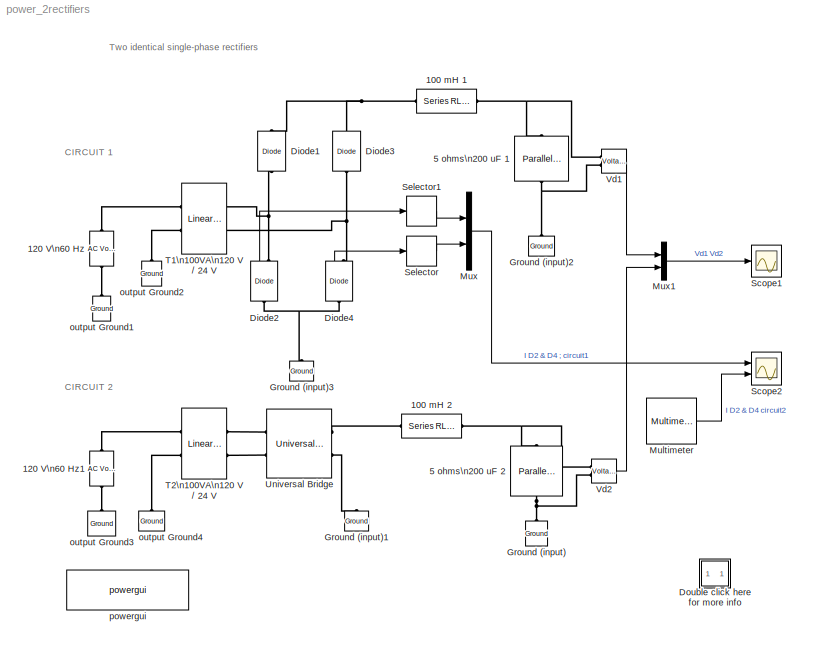
MODEL power_2rectifiers
KIND model
BLOCK [Reference] 100 mH 1  REF=powerlib/Elements/Series RLC Branch
  AttributesFormatString = \\n
  Capacitance = inf
  Inductance = 100e-03
  LConnTagsString = __new0
  LeftPortType = p1
  Measurements = None
  PhysicalDomain = powersysdomain
  Ports = [0, 0, 0, 0, 0, 1, 1]
  RConnTagsString = __new0
  Resistance = 0
  RightPortType = p1
  SourceBlock = powerlib/Elements/Series RLC Branch
  SourceType = Series RLC Branch
  SubClassName = unknown
BLOCK [Reference] 100 mH 2  REF=powerlib/Elements/Series RLC Branch
  AttributesFormatString = \\n
  Capacitance = inf
  Inductance = 100e-03
  LConnTagsString = __new0
  LeftPortType = p1
  Measurements = None
  PhysicalDomain = powersysdomain
  Ports = [0, 0, 0, 0, 0, 1, 1]
  RConnTagsString = __new0
  Resistance = 0
  RightPortType = p1
  SourceBlock = powerlib/Elements/Series RLC Branch
  SourceType = Series RLC Branch
  SubClassName = unknown
BLOCK [Reference] 120 V\n60 Hz  REF=powerlib/Electrical\nSources/AC Voltage Source
  Amplitude = 120*sqrt(2)
  AttributesFormatString = \\n
  Description = source block
  Frequency = 60
  Measurements = None
  Phase = 0
  Ports = [0, 0, 0, 0, 0, 1, 1]
  SampleTime = 0
  ShowPortLabels = on
  SourceBlock = powerlib/Electrical\nSources/AC Voltage Source
  SourceType = AC Voltage Source
BLOCK [Reference] 120 V\n60 Hz1  REF=powerlib/Electrical\nSources/AC Voltage Source
  Amplitude = 120*sqrt(2)
  AttributesFormatString = \\n
  Description = source block
  Frequency = 60
  Measurements = None
  Phase = 0
  Ports = [0, 0, 0, 0, 0, 1, 1]
  SampleTime = 0
  ShowPortLabels = on
  SourceBlock = powerlib/Electrical\nSources/AC Voltage Source
  SourceType = AC Voltage Source
BLOCK [Reference] 5 ohms\n200 uF 1  REF=powerlib/Elements/Parallel RLC Branch
  AttributesFormatString = \\n
  Capacitance = 200e-06
  Inductance = inf
  LConnTagsString = a
  LeftPortType = p1
  Measurements = None
  PhysicalDomain = powersysdomain
  Ports = [0, 0, 0, 0, 0, 1, 1]
  RConnTagsString = __new0
  Resistance = 5
  RightPortType = p1
  SourceBlock = powerlib/Elements/Parallel RLC Branch
  SourceType = Parallel RLC Branch
  SubClassName = unknown
BLOCK [Reference] 5 ohms\n200 uF 2  REF=powerlib/Elements/Parallel RLC Branch
  AttributesFormatString = \\n
  Capacitance = 200e-06
  Inductance = inf
  LConnTagsString = a
  LeftPortType = p1
  Measurements = None
  PhysicalDomain = powersysdomain
  Ports = [0, 0, 0, 0, 0, 1, 1]
  RConnTagsString = __new0
  Resistance = 5
  RightPortType = p1
  SourceBlock = powerlib/Elements/Parallel RLC Branch
  SourceType = Parallel RLC Branch
  SubClassName = unknown
BLOCK [Reference] Diode1  REF=powerlib/Power\nElectronics/Diode
  AttributesFormatString = \\n
  Cs = 0.1e-6
  IC = 0
  Lon = 0
  Measurements = off
  Ports = [0, 0, 0, 0, 0, 1, 1]
  Ron = 0.01
  Rs = 250
  ShowPortLabels = on
  SourceBlock = powerlib/Power\nElectronics/Diode
  SourceType = Diode
  Vf = 0.8
BLOCK [Reference] Diode2  REF=powerlib/Power\nElectronics/Diode
  AttributesFormatString = \\n
  Cs = 0.1e-6
  IC = 0
  Lon = 0
  Measurements = on
  Ports = [0, 1, 0, 0, 0, 1, 1]
  Ron = 0.01
  Rs = 250
  ShowPortLabels = on
  SourceBlock = powerlib/Power\nElectronics/Diode
  SourceType = Diode
  Vf = 0.8
BLOCK [Reference] Diode3  REF=powerlib/Power\nElectronics/Diode
  AttributesFormatString = \\n
  Cs = 0.1e-6
  IC = 0
  Lon = 0
  Measurements = off
  Ports = [0, 0, 0, 0, 0, 1, 1]
  Ron = 0.01
  Rs = 250
  ShowPortLabels = on
  SourceBlock = powerlib/Power\nElectronics/Diode
  SourceType = Diode
  Vf = 0.8
BLOCK [Reference] Diode4  REF=powerlib/Power\nElectronics/Diode
  AttributesFormatString = \\n
  Cs = 0.1e-6
  IC = 0
  Lon = 0
  Measurements = on
  Ports = [0, 1, 0, 0, 0, 1, 1]
  Ron = 0.01
  Rs = 250
  ShowPortLabels = on
  SourceBlock = powerlib/Power\nElectronics/Diode
  SourceType = Diode
  Vf = 0.8
BLOCK [SubSystem] Double click here for more info
  MaskDisplay = disp('?')
  MaskIconFrame = on
  MaskIconOpaque = on
  MaskIconRotate = none
  MaskIconUnits = autoscale
  MinAlgLoopOccurrences = off
  Ports = []
  RTWSystemCode = Auto
  TreatAsAtomicUnit = off
BLOCK [Reference] Ground (input)  REF=powerlib/Elements/Ground
  AttributesFormatString = \\n
  LConnTagsString = a
  LeftPortType = p1
  PhysicalDomain = powersysdomain
  Ports = [0, 0, 0, 0, 0, 1]
  RightPortType = p1
  SourceBlock = powerlib/Elements/Ground
  SourceType = Ground
  SubClassName = unknown
BLOCK [Reference] Ground (input)1  REF=powerlib/Elements/Ground
  AttributesFormatString = \\n
  LConnTagsString = a
  LeftPortType = p1
  PhysicalDomain = powersysdomain
  Ports = [0, 0, 0, 0, 0, 1]
  RightPortType = p1
  SourceBlock = powerlib/Elements/Ground
  SourceType = Ground
  SubClassName = unknown
BLOCK [Reference] Ground (input)2  REF=powerlib/Elements/Ground
  AttributesFormatString = \\n
  LConnTagsString = a
  LeftPortType = p1
  PhysicalDomain = powersysdomain
  Ports = [0, 0, 0, 0, 0, 1]
  RightPortType = p1
  SourceBlock = powerlib/Elements/Ground
  SourceType = Ground
  SubClassName = unknown
BLOCK [Reference] Ground (input)3  REF=powerlib/Elements/Ground
  AttributesFormatString = \\n
  LConnTagsString = a
  LeftPortType = p1
  PhysicalDomain = powersysdomain
  Ports = [0, 0, 0, 0, 0, 1]
  RightPortType = p1
  SourceBlock = powerlib/Elements/Ground
  SourceType = Ground
  SubClassName = unknown
BLOCK [Reference] Multimeter  REF=powerlib/Measurements/Multimeter
  AttributesFormatString = \\n
  AxesSetting = [0,0.1,-100,100]
  Display = 0
  Gain = [1 1]
  L = 4
  OutputType = Magnitude
  PSBOutputType = 1
  PSBequivalent = 0
  PhasorSimulation = off
  Ports = [0, 1]
  SavedBlockNames = -11
  ShowPortLabels = on
  SourceBlock = powerlib/Measurements/Multimeter
  SourceType = MultimeterPSB
  Tag = PoWeRsYsTeMmEaSuReMeNt
  sel = [2 4]
  yselected = {'Isw2: Universal Bridge','Isw4: Universal Bridge'};
BLOCK [Mux] Mux
  Inputs = 2
  Ports = [2, 1]
BLOCK [Mux] Mux1
  DisplayOption = bar
  Inputs = 2
  Ports = [2, 1]
BLOCK [Scope] Scope1
  DataFormat = Array
  LimitDataPoints = off
  NumInputPorts = 1
  Ports = [1]
  SampleInput = on
  SampleTime = 10e-6
  SaveName = V2X
  TimeRange = 0.1
  YMax = 20
  YMin = 0
  ZoomMode = xonly
BLOCK [Scope] Scope2
  DataFormat = Array
  LimitDataPoints = off
  NumInputPorts = 2
  Ports = [2]
  SampleInput = on
  SampleTime = 10e-6
  SaveName = V2X
  TimeRange = 0.1
  YMax = 4~4
  YMin = 0~0
  ZoomMode = xonly
BLOCK [Selector] Selector
  InputPortWidth = 2
  Ports = [1, 1]
BLOCK [Selector] Selector1
  InputPortWidth = 2
  Ports = [1, 1]
BLOCK [Reference] T1\n100VA\n120 V // 24 V  REF=powerlib/Elements/Linear Transformer
  LConnTagsString = a|b
  LeftPortType = p1
  Measurements = None
  NominalPower = [100 60]
  PhysicalDomain = powersysdomain
  Ports = [0, 0, 0, 0, 0, 2, 2]
  RConnTagsString = A|B
  RightPortType = p1
  RmLm = [25 25]
  SourceBlock = powerlib/Elements/Linear Transformer
  SourceType = Linear Transformer
  SubClassName = unknown
  ThreeWindings = off
  winding1 = [120 0.03 0.02]
  winding2 = [24 0.03 0.02]
  winding3 = [24 0.03 0.02]
BLOCK [Reference] T2\n100VA\n120 V // 24 V  REF=powerlib/Elements/Linear Transformer
  LConnTagsString = a|b
  LeftPortType = p1
  Measurements = None
  NominalPower = [100 60]
  PhysicalDomain = powersysdomain
  Ports = [0, 0, 0, 0, 0, 2, 2]
  RConnTagsString = A|B
  RightPortType = p1
  RmLm = [25 25]
  SourceBlock = powerlib/Elements/Linear Transformer
  SourceType = Linear Transformer
  SubClassName = unknown
  ThreeWindings = off
  winding1 = [120 0.03 0.02]
  winding2 = [24 0.03 0.02]
  winding3 = [24 0.03 0.02]
BLOCK [Reference] Universal Bridge  REF=powerlib/Power\nElectronics/Universal Bridge
  Arms = 2
  AttributesFormatString = \\n
  Device = Diodes
  ForwardVoltage = 0.8
  ForwardVoltages = [  0.8  0.8  ]
  GTOparameters = [ 10e-6 , 20e-6 ]
  IGBTparameters = [ 1e-6 , 2e-6 ]
  Lon = 0
  Measurements = Device currents
  Ports = [0, 0, 0, 0, 0, 2, 2]
  Ron = 0.01
  ShowPortLabels = on
  SnubberCapacitance = 0.1e-6
  SnubberResistance = 250
  SourceBlock = powerlib/Power\nElectronics/Universal Bridge
  SourceType = Universal Bridge
BLOCK [Reference] Vd1  REF=powerlib/Measurements/Voltage Measurement
  AttributesFormatString = \\n
  OutputType = Magnitude
  PSBequivalent = 0
  PhasorSimulation = off
  Ports = [0, 1, 0, 0, 0, 2]
  ShowPortLabels = on
  SourceBlock = powerlib/Measurements/Voltage Measurement
  SourceType = Voltage Measurement
  Tag = PoWeRsYsTeMmEaSuReMeNt
BLOCK [Reference] Vd2  REF=powerlib/Measurements/Voltage Measurement
  AttributesFormatString = \\n
  OutputType = Magnitude
  PSBequivalent = 0
  PhasorSimulation = off
  Ports = [0, 1, 0, 0, 0, 2]
  ShowPortLabels = on
  SourceBlock = powerlib/Measurements/Voltage Measurement
  SourceType = Voltage Measurement
  Tag = PoWeRsYsTeMmEaSuReMeNt
BLOCK [Reference] output Ground1  REF=powerlib/Elements/Ground
  AttributesFormatString = \\n
  LConnTagsString = a
  LeftPortType = p1
  PhysicalDomain = powersysdomain
  Ports = [0, 0, 0, 0, 0, 1]
  RightPortType = p1
  SourceBlock = powerlib/Elements/Ground
  SourceType = Ground
  SubClassName = unknown
BLOCK [Reference] output Ground2  REF=powerlib/Elements/Ground
  AttributesFormatString = \\n
  LConnTagsString = a
  LeftPortType = p1
  PhysicalDomain = powersysdomain
  Ports = [0, 0, 0, 0, 0, 1]
  RightPortType = p1
  SourceBlock = powerlib/Elements/Ground
  SourceType = Ground
  SubClassName = unknown
BLOCK [Reference] output Ground3  REF=powerlib/Elements/Ground
  AttributesFormatString = \\n
  LConnTagsString = a
  LeftPortType = p1
  PhysicalDomain = powersysdomain
  Ports = [0, 0, 0, 0, 0, 1]
  RightPortType = p1
  SourceBlock = powerlib/Elements/Ground
  SourceType = Ground
  SubClassName = unknown
BLOCK [Reference] output Ground4  REF=powerlib/Elements/Ground
  AttributesFormatString = \\n
  LConnTagsString = a
  LeftPortType = p1
  PhysicalDomain = powersysdomain
  Ports = [0, 0, 0, 0, 0, 1]
  RightPortType = p1
  SourceBlock = powerlib/Elements/Ground
  SourceType = Ground
  SubClassName = unknown
BLOCK [Reference] powergui  REF=powerlib/powergui
  DisplayStyle = off
  Frange = [0:2:500]
  FreqAxis = off
  MaxFrequency = 1000
  Ports = []
  Priority = 2
  RmsSteady = 1
  ShowPortLabels = on
  SourceBlock = powerlib/powergui
  SourceType = PSB option menu block
  StartTime = 0.0
  Ts = 50e-6
  Xlog = on
  Ylog = off
  ZoomFFT = on
  cycles = 1
  display = off
  echomessages = on
  frequency = 60
  frequencyindice = 1
  frequencyindicesteady = 1
  fundamental = 60
  methode = off
  save = off
  variable = ZData
ANNOTATION (root): CIRCUIT 1
ANNOTATION (root): CIRCUIT 2
ANNOTATION (root): Two identical single-phase rectifiers
ANNOTATION Double click here for more info: Circuit Description
ANNOTATION Double click here for more info: Demonstration
ANNOTATION Double click here for more info: G. Sybille (Hydro-Quebec)
ANNOTATION Double click here for more info: Open the Universal Bridge dialog box and notice that in order to obtain a four-diode bridge configuration,\nthe Power electronic devices field has been set to 'Diodes' and that the number of arms has been set to 2. \nAlso, observe that the Measurements field has been set to 'Device currents', thus allowing\nmeasurement of diode currents through the Multimeter block.\n\nNow, double click on the Mul...<+925ch>
ANNOTATION Double click here for more info: This demonstration illustrates use of the Universal Bridge, Multimeter,\nand Discrete System blocks
ANNOTATION Double click here for more info: This system contains two identical circuits showing the operation of a single phase rectifier.\n \nThe rectifiers are fed by a 120 V/ 24 V linear transformer. The rectified voltage is filtered by a\n100 mH / 200 uF filter and applied to a 5 ohm resistive load. The load voltages are measured\nby two Voltage Measurement blocks Vd1 and Vd2.\n\nThe top circuit (circuit 1) uses four individual diodes c...<+364ch>
LINE Diode2:1 -> Selector1:1
LINE Diode4:1 -> Selector:1
LINE Multimeter:1 -> Scope2:2
LINE Mux1:1 -> Scope1:1
LINE Mux:1 -> Scope2:1
LINE Selector1:1 -> Mux:1
LINE Selector:1 -> Mux:2
LINE Vd1:1 -> Mux1:1
LINE Vd2:1 -> Mux1:2
PNET net1: 100 mH 1:LConn1 -- Diode1:RConn1 -- Diode3:RConn1
PNET net2: 100 mH 1:RConn1 -- 5 ohms\n200 uF 1:LConn1 -- Vd1:LConn1
PLINE 100 mH 2:LConn1 -- Universal Bridge:RConn1
PNET net3: 100 mH 2:RConn1 -- 5 ohms\n200 uF 2:LConn1 -- Vd2:LConn1
PLINE 120 V\n60 Hz1:LConn1 -- output Ground3:LConn1
PLINE 120 V\n60 Hz1:RConn1 -- T2\n100VA\n120 V // 24 V:LConn1
PLINE 120 V\n60 Hz:LConn1 -- output Ground1:LConn1
PLINE 120 V\n60 Hz:RConn1 -- T1\n100VA\n120 V // 24 V:LConn1
PNET net4: 5 ohms\n200 uF 1:RConn1 -- Ground (input)2:LConn1 -- Vd1:LConn2
PNET net5: 5 ohms\n200 uF 2:RConn1 -- Ground (input):LConn1 -- Vd2:LConn2
PNET net6: Diode1:LConn1 -- Diode2:RConn1 -- T1\n100VA\n120 V // 24 V:RConn1
PNET net7: Diode2:LConn1 -- Diode4:LConn1 -- Ground (input)3:LConn1
PNET net8: Diode3:LConn1 -- Diode4:RConn1 -- T1\n100VA\n120 V // 24 V:RConn2
PLINE Ground (input)1:LConn1 -- Universal Bridge:RConn2
PLINE T1\n100VA\n120 V // 24 V:LConn2 -- output Ground2:LConn1
PLINE T2\n100VA\n120 V // 24 V:LConn2 -- output Ground4:LConn1
PLINE T2\n100VA\n120 V // 24 V:RConn1 -- Universal Bridge:LConn1
PLINE T2\n100VA\n120 V // 24 V:RConn2 -- Universal Bridge:LConn2
note: PNET lines group multi-terminal physical nets as a canonical sorted terminal list (undirected conserving connections); 2-terminal nets keep the pairwise PLINE form
